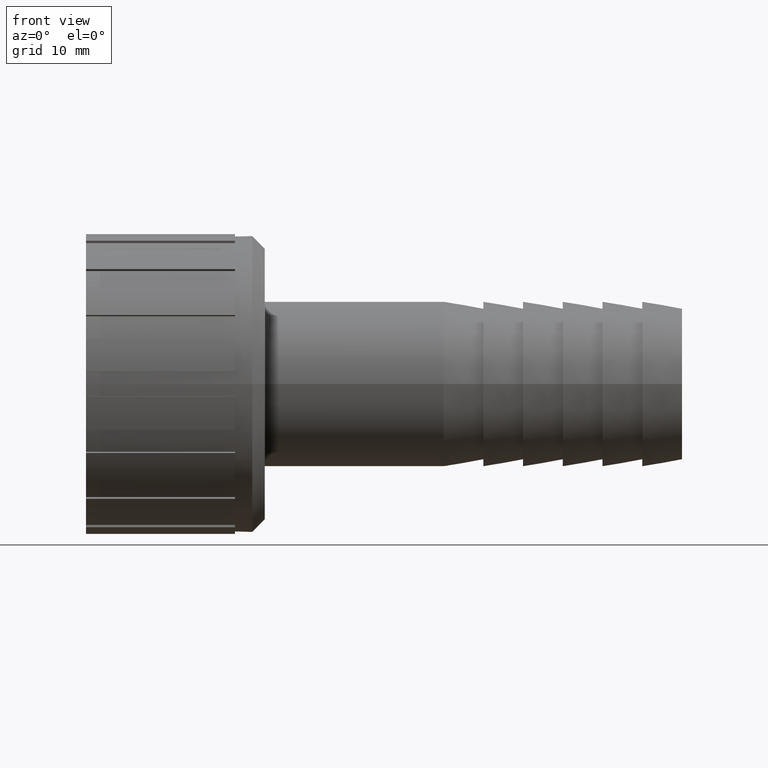
[diagram: clean part render]
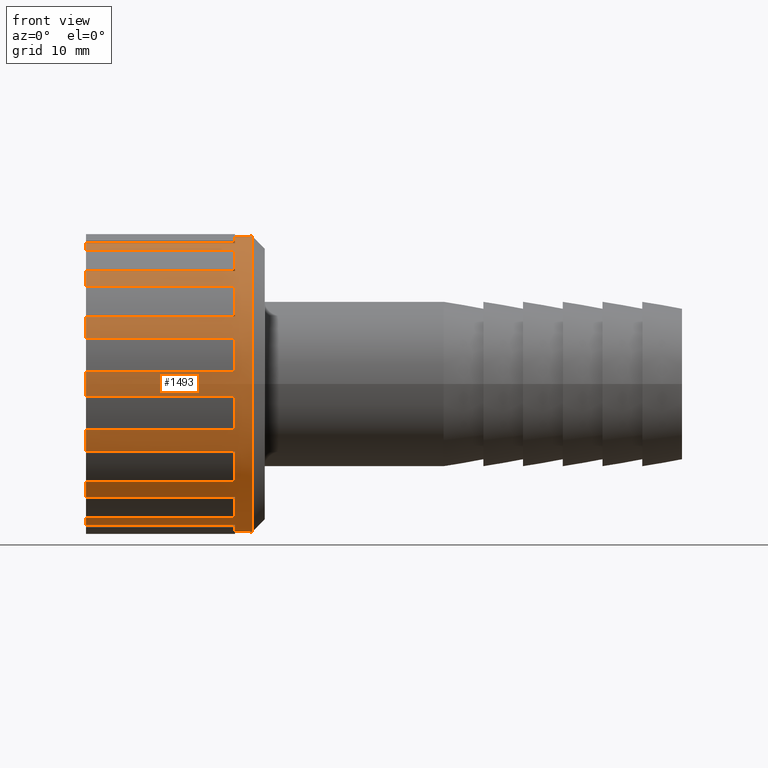
[diagram: same view with one face highlighted and labeled with its STEP entity id]
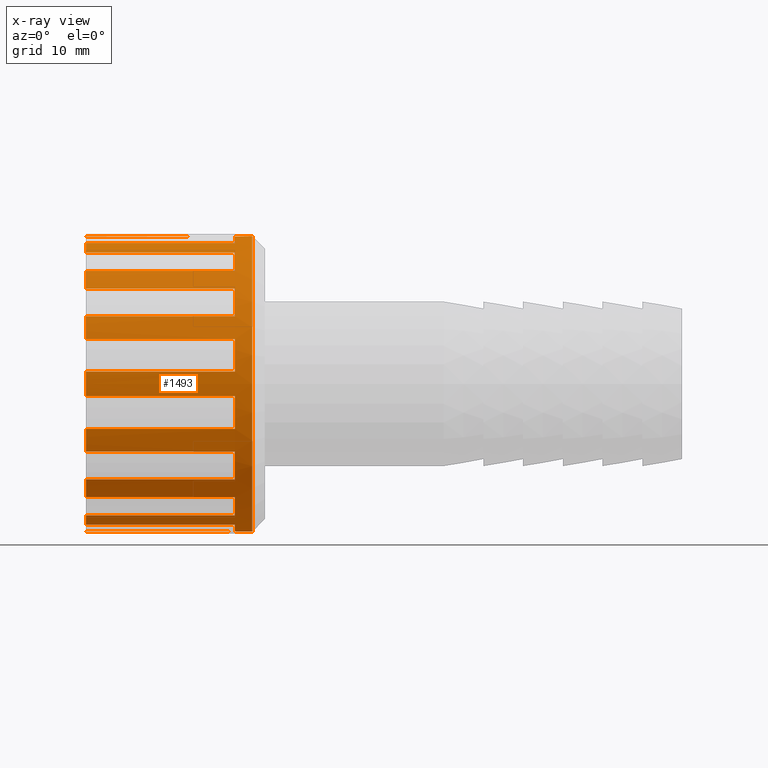
[diagram: x-ray of the same camera — body ghosted, the highlighted face saturated]
A machine part, front view. The second image highlights one B-rep face of the part: STEP entity #1493.
The next image is the same camera in x-ray: the body ghosted, the highlighted face saturated — about 0% of this face is hidden behind the body in this view.
In plain terms, the highlighted cylindrical surface (bore or boss wall) has radius 17.8717 mm, axis along (-1, 0, 0).
Its self-contained STEP definition (entity closure, byte-faithful):
#38=CYLINDRICAL_SURFACE('',#1647,17.87169);
#45=FACE_BOUND('',#300,.T.);
#62=CIRCLE('',#1543,17.87169);
#64=CIRCLE('',#1545,17.87169);
#66=CIRCLE('',#1547,17.87169);
#68=CIRCLE('',#1549,17.87169);
#70=CIRCLE('',#1551,17.87169);
#72=CIRCLE('',#1553,17.87169);
#74=CIRCLE('',#1555,17.87169);
#76=CIRCLE('',#1557,17.87169);
#78=CIRCLE('',#1559,17.87169);
#80=CIRCLE('',#1561,17.87169);
#82=CIRCLE('',#1563,17.87169);
#84=CIRCLE('',#1565,17.87169);
#86=CIRCLE('',#1567,17.87169);
#88=CIRCLE('',#1569,17.87169);
#90=CIRCLE('',#1571,17.87169);
#92=CIRCLE('',#1573,17.87169);
#96=CIRCLE('',#1578,17.87169);
#98=CIRCLE('',#1581,17.87169);
#100=CIRCLE('',#1584,17.87169);
#102=CIRCLE('',#1587,17.87169);
#104=CIRCLE('',#1590,17.87169);
#106=CIRCLE('',#1593,17.87169);
#108=CIRCLE('',#1596,17.87169);
#110=CIRCLE('',#1599,17.87169);
#112=CIRCLE('',#1602,17.87169);
#114=CIRCLE('',#1605,17.87169);
#116=CIRCLE('',#1608,17.87169);
#118=CIRCLE('',#1611,17.87169);
#120=CIRCLE('',#1614,17.87169);
#122=CIRCLE('',#1617,17.87169);
#123=CIRCLE('',#1619,17.87169);
#126=CIRCLE('',#1623,17.87169);
#128=CIRCLE('',#1644,17.87169);
#212=FACE_OUTER_BOUND('',#299,.T.);
#299=EDGE_LOOP('',(#1272,#1273,#1274,#1275,#1276,#1277,#1278,#1279,#1280,
#1281,#1282,#1283,#1284,#1285,#1286,#1287,#1288,#1289,#1290,#1291,#1292,
#1293,#1294,#1295,#1296,#1297,#1298,#1299,#1300,#1301,#1302,#1303,#1304,
#1305,#1306,#1307,#1308,#1309,#1310,#1311,#1312,#1313,#1314,#1315,#1316,
#1317,#1318,#1319,#1320,#1321,#1322,#1323,#1324,#1325,#1326,#1327,#1328,
#1329,#1330,#1331,#1332,#1333,#1334,#1335));
#300=EDGE_LOOP('',(#1336));
#334=LINE('',#2149,#462);
#340=LINE('',#2161,#468);
#342=LINE('',#2167,#470);
#348=LINE('',#2179,#476);
#350=LINE('',#2185,#478);
#356=LINE('',#2197,#484);
#358=LINE('',#2203,#486);
#364=LINE('',#2215,#492);
#366=LINE('',#2221,#494);
#372=LINE('',#2233,#500);
#374=LINE('',#2239,#502);
#380=LINE('',#2251,#508);
#382=LINE('',#2257,#510);
#388=LINE('',#2269,#516);
#390=LINE('',#2275,#518);
#396=LINE('',#2287,#524);
#398=LINE('',#2293,#526);
#404=LINE('',#2305,#532);
#406=LINE('',#2311,#534);
#412=LINE('',#2323,#540);
#414=LINE('',#2329,#542);
#420=LINE('',#2341,#548);
#422=LINE('',#2347,#550);
#428=LINE('',#2359,#556);
#430=LINE('',#2365,#558);
#436=LINE('',#2377,#564);
#438=LINE('',#2383,#566);
#444=LINE('',#2395,#572);
#446=LINE('',#2401,#574);
#452=LINE('',#2413,#580);
#459=LINE('',#2527,#587);
#460=LINE('',#2529,#588);
#462=VECTOR('',#1684,18.);
#468=VECTOR('',#1692,18.);
#470=VECTOR('',#1696,18.);
#476=VECTOR('',#1704,18.);
#478=VECTOR('',#1708,18.);
#484=VECTOR('',#1716,18.);
#486=VECTOR('',#1720,18.);
#492=VECTOR('',#1728,18.);
#494=VECTOR('',#1732,18.);
#500=VECTOR('',#1740,18.);
#502=VECTOR('',#1744,18.);
#508=VECTOR('',#1752,18.);
#510=VECTOR('',#1756,18.);
#516=VECTOR('',#1764,18.);
#518=VECTOR('',#1768,18.);
#524=VECTOR('',#1776,18.);
#526=VECTOR('',#1780,18.);
#532=VECTOR('',#1788,18.);
#534=VECTOR('',#1792,18.);
#540=VECTOR('',#1800,18.);
#542=VECTOR('',#1804,18.);
#548=VECTOR('',#1812,18.);
#550=VECTOR('',#1816,18.);
#556=VECTOR('',#1824,18.);
#558=VECTOR('',#1828,18.);
#564=VECTOR('',#1836,18.);
#566=VECTOR('',#1840,18.);
#572=VECTOR('',#1848,18.);
#574=VECTOR('',#1852,18.);
#580=VECTOR('',#1860,18.);
#587=VECTOR('',#2063,18.);
#588=VECTOR('',#2066,18.);
#589=VERTEX_POINT('',#2145);
#591=VERTEX_POINT('',#2148);
#594=VERTEX_POINT('',#2155);
#596=VERTEX_POINT('',#2159);
#597=VERTEX_POINT('',#2163);
#599=VERTEX_POINT('',#2166);
#602=VERTEX_POINT('',#2173);
#604=VERTEX_POINT('',#2177);
#605=VERTEX_POINT('',#2181);
#607=VERTEX_POINT('',#2184);
#610=VERTEX_POINT('',#2191);
#612=VERTEX_POINT('',#2195);
#613=VERTEX_POINT('',#2199);
#615=VERTEX_POINT('',#2202);
#618=VERTEX_POINT('',#2209);
#620=VERTEX_POINT('',#2213);
#621=VERTEX_POINT('',#2217);
#623=VERTEX_POINT('',#2220);
#626=VERTEX_POINT('',#2227);
#628=VERTEX_POINT('',#2231);
#629=VERTEX_POINT('',#2235);
#631=VERTEX_POINT('',#2238);
#634=VERTEX_POINT('',#2245);
#636=VERTEX_POINT('',#2249);
#637=VERTEX_POINT('',#2253);
#639=VERTEX_POINT('',#2256);
#642=VERTEX_POINT('',#2263);
#644=VERTEX_POINT('',#2267);
#645=VERTEX_POINT('',#2271);
#647=VERTEX_POINT('',#2274);
#650=VERTEX_POINT('',#2281);
#652=VERTEX_POINT('',#2285);
#653=VERTEX_POINT('',#2289);
#655=VERTEX_POINT('',#2292);
#658=VERTEX_POINT('',#2299);
#660=VERTEX_POINT('',#2303);
#661=VERTEX_POINT('',#2307);
#663=VERTEX_POINT('',#2310);
#666=VERTEX_POINT('',#2317);
#668=VERTEX_POINT('',#2321);
#669=VERTEX_POINT('',#2325);
#671=VERTEX_POINT('',#2328);
#674=VERTEX_POINT('',#2335);
#676=VERTEX_POINT('',#2339);
#677=VERTEX_POINT('',#2343);
#679=VERTEX_POINT('',#2346);
#682=VERTEX_POINT('',#2353);
#684=VERTEX_POINT('',#2357);
#685=VERTEX_POINT('',#2361);
#687=VERTEX_POINT('',#2364);
#690=VERTEX_POINT('',#2371);
#692=VERTEX_POINT('',#2375);
#693=VERTEX_POINT('',#2379);
#695=VERTEX_POINT('',#2382);
#698=VERTEX_POINT('',#2389);
#700=VERTEX_POINT('',#2393);
#701=VERTEX_POINT('',#2397);
#703=VERTEX_POINT('',#2400);
#706=VERTEX_POINT('',#2407);
#708=VERTEX_POINT('',#2411);
#710=VERTEX_POINT('',#2418);
#711=VERTEX_POINT('',#2420);
#715=VERTEX_POINT('',#2458);
#716=VERTEX_POINT('',#2501);
#719=VERTEX_POINT('',#2534);
#737=EDGE_CURVE('',#591,#589,#334,.T.);
#743=EDGE_CURVE('',#596,#594,#340,.T.);
#745=EDGE_CURVE('',#599,#597,#342,.T.);
#751=EDGE_CURVE('',#604,#602,#348,.T.);
#753=EDGE_CURVE('',#607,#605,#350,.T.);
#759=EDGE_CURVE('',#612,#610,#356,.T.);
#761=EDGE_CURVE('',#615,#613,#358,.T.);
#767=EDGE_CURVE('',#620,#618,#364,.T.);
#769=EDGE_CURVE('',#623,#621,#366,.T.);
#775=EDGE_CURVE('',#628,#626,#372,.T.);
#777=EDGE_CURVE('',#631,#629,#374,.T.);
#783=EDGE_CURVE('',#636,#634,#380,.T.);
#785=EDGE_CURVE('',#639,#637,#382,.T.);
#791=EDGE_CURVE('',#644,#642,#388,.T.);
#793=EDGE_CURVE('',#647,#645,#390,.T.);
#799=EDGE_CURVE('',#652,#650,#396,.T.);
#801=EDGE_CURVE('',#655,#653,#398,.T.);
#807=EDGE_CURVE('',#660,#658,#404,.T.);
#809=EDGE_CURVE('',#663,#661,#406,.T.);
#815=EDGE_CURVE('',#668,#666,#412,.T.);
#817=EDGE_CURVE('',#671,#669,#414,.T.);
#823=EDGE_CURVE('',#676,#674,#420,.T.);
#825=EDGE_CURVE('',#679,#677,#422,.T.);
#831=EDGE_CURVE('',#684,#682,#428,.T.);
#833=EDGE_CURVE('',#687,#685,#430,.T.);
#839=EDGE_CURVE('',#692,#690,#436,.T.);
#841=EDGE_CURVE('',#695,#693,#438,.T.);
#847=EDGE_CURVE('',#700,#698,#444,.T.);
#849=EDGE_CURVE('',#703,#701,#446,.T.);
#855=EDGE_CURVE('',#708,#706,#452,.T.);
#856=EDGE_CURVE('',#594,#589,#62,.T.);
#859=EDGE_CURVE('',#710,#711,#64,.T.);
#862=EDGE_CURVE('',#706,#701,#66,.T.);
#864=EDGE_CURVE('',#698,#693,#68,.T.);
#866=EDGE_CURVE('',#690,#685,#70,.T.);
#868=EDGE_CURVE('',#682,#677,#72,.T.);
#870=EDGE_CURVE('',#674,#669,#74,.T.);
#872=EDGE_CURVE('',#666,#661,#76,.T.);
#874=EDGE_CURVE('',#658,#653,#78,.T.);
#876=EDGE_CURVE('',#650,#645,#80,.T.);
#878=EDGE_CURVE('',#642,#637,#82,.T.);
#880=EDGE_CURVE('',#634,#629,#84,.T.);
#882=EDGE_CURVE('',#626,#621,#86,.T.);
#884=EDGE_CURVE('',#618,#613,#88,.T.);
#886=EDGE_CURVE('',#610,#605,#90,.T.);
#888=EDGE_CURVE('',#602,#597,#92,.T.);
#893=EDGE_CURVE('',#715,#708,#96,.T.);
#895=EDGE_CURVE('',#703,#700,#98,.T.);
#897=EDGE_CURVE('',#695,#692,#100,.T.);
#899=EDGE_CURVE('',#687,#684,#102,.T.);
#901=EDGE_CURVE('',#679,#676,#104,.T.);
#903=EDGE_CURVE('',#671,#668,#106,.T.);
#905=EDGE_CURVE('',#663,#660,#108,.T.);
#907=EDGE_CURVE('',#655,#652,#110,.T.);
#909=EDGE_CURVE('',#647,#644,#112,.T.);
#911=EDGE_CURVE('',#639,#636,#114,.T.);
#913=EDGE_CURVE('',#631,#628,#116,.T.);
#915=EDGE_CURVE('',#623,#620,#118,.T.);
#917=EDGE_CURVE('',#615,#612,#120,.T.);
#919=EDGE_CURVE('',#607,#604,#122,.T.);
#920=EDGE_CURVE('',#591,#716,#123,.T.);
#924=EDGE_CURVE('',#599,#596,#126,.T.);
#927=EDGE_CURVE('',#715,#711,#459,.T.);
#928=EDGE_CURVE('',#716,#710,#460,.T.);
#930=EDGE_CURVE('',#719,#719,#128,.T.);
#1272=ORIENTED_EDGE('',*,*,#893,.F.);
#1273=ORIENTED_EDGE('',*,*,#927,.T.);
#1274=ORIENTED_EDGE('',*,*,#859,.F.);
#1275=ORIENTED_EDGE('',*,*,#928,.F.);
#1276=ORIENTED_EDGE('',*,*,#920,.F.);
#1277=ORIENTED_EDGE('',*,*,#737,.T.);
#1278=ORIENTED_EDGE('',*,*,#856,.F.);
#1279=ORIENTED_EDGE('',*,*,#743,.F.);
#1280=ORIENTED_EDGE('',*,*,#924,.F.);
#1281=ORIENTED_EDGE('',*,*,#745,.T.);
#1282=ORIENTED_EDGE('',*,*,#888,.F.);
#1283=ORIENTED_EDGE('',*,*,#751,.F.);
#1284=ORIENTED_EDGE('',*,*,#919,.F.);
#1285=ORIENTED_EDGE('',*,*,#753,.T.);
#1286=ORIENTED_EDGE('',*,*,#886,.F.);
#1287=ORIENTED_EDGE('',*,*,#759,.F.);
#1288=ORIENTED_EDGE('',*,*,#917,.F.);
#1289=ORIENTED_EDGE('',*,*,#761,.T.);
#1290=ORIENTED_EDGE('',*,*,#884,.F.);
#1291=ORIENTED_EDGE('',*,*,#767,.F.);
#1292=ORIENTED_EDGE('',*,*,#915,.F.);
#1293=ORIENTED_EDGE('',*,*,#769,.T.);
#1294=ORIENTED_EDGE('',*,*,#882,.F.);
#1295=ORIENTED_EDGE('',*,*,#775,.F.);
#1296=ORIENTED_EDGE('',*,*,#913,.F.);
#1297=ORIENTED_EDGE('',*,*,#777,.T.);
#1298=ORIENTED_EDGE('',*,*,#880,.F.);
#1299=ORIENTED_EDGE('',*,*,#783,.F.);
#1300=ORIENTED_EDGE('',*,*,#911,.F.);
#1301=ORIENTED_EDGE('',*,*,#785,.T.);
#1302=ORIENTED_EDGE('',*,*,#878,.F.);
#1303=ORIENTED_EDGE('',*,*,#791,.F.);
#1304=ORIENTED_EDGE('',*,*,#909,.F.);
#1305=ORIENTED_EDGE('',*,*,#793,.T.);
#1306=ORIENTED_EDGE('',*,*,#876,.F.);
#1307=ORIENTED_EDGE('',*,*,#799,.F.);
#1308=ORIENTED_EDGE('',*,*,#907,.F.);
#1309=ORIENTED_EDGE('',*,*,#801,.T.);
#1310=ORIENTED_EDGE('',*,*,#874,.F.);
#1311=ORIENTED_EDGE('',*,*,#807,.F.);
#1312=ORIENTED_EDGE('',*,*,#905,.F.);
#1313=ORIENTED_EDGE('',*,*,#809,.T.);
#1314=ORIENTED_EDGE('',*,*,#872,.F.);
#1315=ORIENTED_EDGE('',*,*,#815,.F.);
#1316=ORIENTED_EDGE('',*,*,#903,.F.);
#1317=ORIENTED_EDGE('',*,*,#817,.T.);
#1318=ORIENTED_EDGE('',*,*,#870,.F.);
#1319=ORIENTED_EDGE('',*,*,#823,.F.);
#1320=ORIENTED_EDGE('',*,*,#901,.F.);
#1321=ORIENTED_EDGE('',*,*,#825,.T.);
#1322=ORIENTED_EDGE('',*,*,#868,.F.);
#1323=ORIENTED_EDGE('',*,*,#831,.F.);
#1324=ORIENTED_EDGE('',*,*,#899,.F.);
#1325=ORIENTED_EDGE('',*,*,#833,.T.);
#1326=ORIENTED_EDGE('',*,*,#866,.F.);
#1327=ORIENTED_EDGE('',*,*,#839,.F.);
#1328=ORIENTED_EDGE('',*,*,#897,.F.);
#1329=ORIENTED_EDGE('',*,*,#841,.T.);
#1330=ORIENTED_EDGE('',*,*,#864,.F.);
#1331=ORIENTED_EDGE('',*,*,#847,.F.);
#1332=ORIENTED_EDGE('',*,*,#895,.F.);
#1333=ORIENTED_EDGE('',*,*,#849,.T.);
#1334=ORIENTED_EDGE('',*,*,#862,.F.);
#1335=ORIENTED_EDGE('',*,*,#855,.F.);
#1336=ORIENTED_EDGE('',*,*,#930,.F.);
#1493=ADVANCED_FACE('',(#212,#45),#38,.T.);
#1543=AXIS2_PLACEMENT_3D('',#2415,#1863,#1864);
#1545=AXIS2_PLACEMENT_3D('',#2421,#1868,#1869);
#1547=AXIS2_PLACEMENT_3D('',#2425,#1873,#1874);
#1549=AXIS2_PLACEMENT_3D('',#2427,#1877,#1878);
#1551=AXIS2_PLACEMENT_3D('',#2429,#1881,#1882);
#1553=AXIS2_PLACEMENT_3D('',#2431,#1885,#1886);
#1555=AXIS2_PLACEMENT_3D('',#2433,#1889,#1890);
#1557=AXIS2_PLACEMENT_3D('',#2435,#1893,#1894);
#1559=AXIS2_PLACEMENT_3D('',#2437,#1897,#1898);
#1561=AXIS2_PLACEMENT_3D('',#2439,#1901,#1902);
#1563=AXIS2_PLACEMENT_3D('',#2441,#1905,#1906);
#1565=AXIS2_PLACEMENT_3D('',#2443,#1909,#1910);
#1567=AXIS2_PLACEMENT_3D('',#2445,#1913,#1914);
#1569=AXIS2_PLACEMENT_3D('',#2447,#1917,#1918);
#1571=AXIS2_PLACEMENT_3D('',#2449,#1921,#1922);
#1573=AXIS2_PLACEMENT_3D('',#2451,#1925,#1926);
#1578=AXIS2_PLACEMENT_3D('',#2460,#1936,#1937);
#1581=AXIS2_PLACEMENT_3D('',#2463,#1942,#1943);
#1584=AXIS2_PLACEMENT_3D('',#2466,#1948,#1949);
#1587=AXIS2_PLACEMENT_3D('',#2469,#1954,#1955);
#1590=AXIS2_PLACEMENT_3D('',#2472,#1960,#1961);
#1593=AXIS2_PLACEMENT_3D('',#2475,#1966,#1967);
#1596=AXIS2_PLACEMENT_3D('',#2478,#1972,#1973);
#1599=AXIS2_PLACEMENT_3D('',#2481,#1978,#1979);
#1602=AXIS2_PLACEMENT_3D('',#2484,#1984,#1985);
#1605=AXIS2_PLACEMENT_3D('',#2487,#1990,#1991);
#1608=AXIS2_PLACEMENT_3D('',#2490,#1996,#1997);
#1611=AXIS2_PLACEMENT_3D('',#2493,#2002,#2003);
#1614=AXIS2_PLACEMENT_3D('',#2496,#2008,#2009);
#1617=AXIS2_PLACEMENT_3D('',#2499,#2014,#2015);
#1619=AXIS2_PLACEMENT_3D('',#2502,#2018,#2019);
#1623=AXIS2_PLACEMENT_3D('',#2508,#2027,#2028);
#1644=AXIS2_PLACEMENT_3D('',#2535,#2073,#2074);
#1647=AXIS2_PLACEMENT_3D('',#2539,#2079,#2080);
#1684=DIRECTION('',(-1.,0.,0.));
#1692=DIRECTION('',(-1.,0.,0.));
#1696=DIRECTION('',(-1.,0.,0.));
#1704=DIRECTION('',(-1.,0.,0.));
#1708=DIRECTION('',(-1.,0.,0.));
#1716=DIRECTION('',(-1.,0.,0.));
#1720=DIRECTION('',(-1.,0.,0.));
#1728=DIRECTION('',(-1.,0.,0.));
#1732=DIRECTION('',(-1.,0.,0.));
#1740=DIRECTION('',(-1.,0.,0.));
#1744=DIRECTION('',(-1.,0.,0.));
#1752=DIRECTION('',(-1.,0.,0.));
#1756=DIRECTION('',(-1.,0.,0.));
#1764=DIRECTION('',(-1.,0.,0.));
#1768=DIRECTION('',(-1.,0.,0.));
#1776=DIRECTION('',(-1.,0.,0.));
#1780=DIRECTION('',(-1.,0.,0.));
#1788=DIRECTION('',(-1.,0.,0.));
#1792=DIRECTION('',(-1.,0.,0.));
#1800=DIRECTION('',(-1.,0.,0.));
#1804=DIRECTION('',(-1.,0.,0.));
#1812=DIRECTION('',(-1.,0.,0.));
#1816=DIRECTION('',(-1.,0.,0.));
#1824=DIRECTION('',(-1.,0.,0.));
#1828=DIRECTION('',(-1.,0.,0.));
#1836=DIRECTION('',(-1.,0.,0.));
#1840=DIRECTION('',(-1.,0.,0.));
#1848=DIRECTION('',(-1.,0.,0.));
#1852=DIRECTION('',(-1.,0.,0.));
#1860=DIRECTION('',(-1.,0.,0.));
#1863=DIRECTION('center_axis',(-1.,0.,0.));
#1864=DIRECTION('ref_axis',(0.,-0.38268343236509,0.923879532511287));
#1868=DIRECTION('center_axis',(-1.,0.,0.));
#1869=DIRECTION('ref_axis',(0.,0.,1.));
#1873=DIRECTION('center_axis',(-1.,0.,0.));
#1874=DIRECTION('ref_axis',(0.,0.38268343236509,0.923879532511287));
#1877=DIRECTION('center_axis',(-1.,0.,0.));
#1878=DIRECTION('ref_axis',(0.,0.707106781186547,0.707106781186548));
#1881=DIRECTION('center_axis',(-1.,0.,0.));
#1882=DIRECTION('ref_axis',(0.,0.923879532511287,0.38268343236509));
#1885=DIRECTION('center_axis',(-1.,0.,0.));
#1886=DIRECTION('ref_axis',(0.,1.,2.48487529634893E-16));
#1889=DIRECTION('center_axis',(-1.,0.,0.));
#1890=DIRECTION('ref_axis',(0.,0.923879532511287,-0.38268343236509));
#1893=DIRECTION('center_axis',(-1.,0.,0.));
#1894=DIRECTION('ref_axis',(0.,0.707106781186548,-0.707106781186547));
#1897=DIRECTION('center_axis',(-1.,0.,0.));
#1898=DIRECTION('ref_axis',(0.,0.38268343236509,-0.923879532511287));
#1901=DIRECTION('center_axis',(-1.,0.,0.));
#1902=DIRECTION('ref_axis',(0.,5.5909694167851E-16,-1.));
#1905=DIRECTION('center_axis',(-1.,0.,0.));
#1906=DIRECTION('ref_axis',(0.,-0.382683432365089,-0.923879532511287));
#1909=DIRECTION('center_axis',(-1.,0.,0.));
#1910=DIRECTION('ref_axis',(0.,-0.707106781186547,-0.707106781186548));
#1913=DIRECTION('center_axis',(-1.,0.,0.));
#1914=DIRECTION('ref_axis',(0.,-0.923879532511287,-0.38268343236509));
#1917=DIRECTION('center_axis',(-1.,0.,0.));
#1918=DIRECTION('ref_axis',(0.,-1.,-1.0560720009483E-15));
#1921=DIRECTION('center_axis',(-1.,0.,0.));
#1922=DIRECTION('ref_axis',(0.,-0.923879532511287,0.382683432365089));
#1925=DIRECTION('center_axis',(-1.,0.,0.));
#1926=DIRECTION('ref_axis',(0.,-0.707106781186548,0.707106781186547));
#1936=DIRECTION('center_axis',(-1.,0.,0.));
#1937=DIRECTION('ref_axis',(0.,0.,1.));
#1942=DIRECTION('center_axis',(-1.,0.,0.));
#1943=DIRECTION('ref_axis',(0.,0.,1.));
#1948=DIRECTION('center_axis',(-1.,0.,0.));
#1949=DIRECTION('ref_axis',(0.,0.,1.));
#1954=DIRECTION('center_axis',(-1.,0.,0.));
#1955=DIRECTION('ref_axis',(0.,0.,1.));
#1960=DIRECTION('center_axis',(-1.,0.,0.));
#1961=DIRECTION('ref_axis',(0.,0.,1.));
#1966=DIRECTION('center_axis',(-1.,0.,0.));
#1967=DIRECTION('ref_axis',(0.,0.,1.));
#1972=DIRECTION('center_axis',(-1.,0.,0.));
#1973=DIRECTION('ref_axis',(0.,0.,1.));
#1978=DIRECTION('center_axis',(-1.,0.,0.));
#1979=DIRECTION('ref_axis',(0.,0.,1.));
#1984=DIRECTION('center_axis',(-1.,0.,0.));
#1985=DIRECTION('ref_axis',(0.,0.,1.));
#1990=DIRECTION('center_axis',(-1.,0.,0.));
#1991=DIRECTION('ref_axis',(0.,0.,1.));
#1996=DIRECTION('center_axis',(-1.,0.,0.));
#1997=DIRECTION('ref_axis',(0.,0.,1.));
#2002=DIRECTION('center_axis',(-1.,0.,0.));
#2003=DIRECTION('ref_axis',(0.,0.,1.));
#2008=DIRECTION('center_axis',(-1.,0.,0.));
#2009=DIRECTION('ref_axis',(0.,0.,1.));
#2014=DIRECTION('center_axis',(-1.,0.,0.));
#2015=DIRECTION('ref_axis',(0.,0.,1.));
#2018=DIRECTION('center_axis',(-1.,0.,0.));
#2019=DIRECTION('ref_axis',(0.,0.,1.));
#2027=DIRECTION('center_axis',(-1.,0.,0.));
#2028=DIRECTION('ref_axis',(0.,0.,1.));
#2063=DIRECTION('',(-1.,0.,0.));
#2066=DIRECTION('',(-1.,0.,0.));
#2073=DIRECTION('center_axis',(1.,0.,0.));
#2074=DIRECTION('ref_axis',(0.,1.,0.));
#2079=DIRECTION('center_axis',(-1.,0.,0.));
#2080=DIRECTION('ref_axis',(0.,-1.,0.));
#2145=CARTESIAN_POINT('',(0.,-5.43947036182731,17.0237911652752));
#2148=CARTESIAN_POINT('',(18.,-5.43947036182731,17.0237911652752));
#2149=CARTESIAN_POINT('',(18.,-5.43947036182731,17.0237911652752));
#2155=CARTESIAN_POINT('',(0.,-8.19135179555842,15.8839245533811));
#2159=CARTESIAN_POINT('',(18.,-8.19135179555842,15.8839245533811));
#2161=CARTESIAN_POINT('',(18.,-8.19135179555842,15.8839245533811));
#2163=CARTESIAN_POINT('',(0.,-11.540138169988,13.646337035032));
#2166=CARTESIAN_POINT('',(18.,-11.540138169988,13.646337035032));
#2167=CARTESIAN_POINT('',(18.,-11.540138169988,13.646337035032));
#2173=CARTESIAN_POINT('',(0.,-13.646337035032,11.540138169988));
#2177=CARTESIAN_POINT('',(18.,-13.646337035032,11.540138169988));
#2179=CARTESIAN_POINT('',(18.,-13.646337035032,11.540138169988));
#2181=CARTESIAN_POINT('',(0.,-15.8839245533811,8.1913517955584));
#2184=CARTESIAN_POINT('',(18.,-15.8839245533811,8.1913517955584));
#2185=CARTESIAN_POINT('',(18.,-15.8839245533811,8.1913517955584));
#2191=CARTESIAN_POINT('',(0.,-17.0237911652752,5.43947036182729));
#2195=CARTESIAN_POINT('',(18.,-17.0237911652752,5.43947036182729));
#2197=CARTESIAN_POINT('',(18.,-17.0237911652752,5.43947036182729));
#2199=CARTESIAN_POINT('',(0.,-17.8095274116565,1.48930749999998));
#2202=CARTESIAN_POINT('',(18.,-17.8095274116565,1.48930749999998));
#2203=CARTESIAN_POINT('',(18.,-17.8095274116565,1.48930749999998));
#2209=CARTESIAN_POINT('',(0.,-17.8095274116565,-1.48930750000002));
#2213=CARTESIAN_POINT('',(18.,-17.8095274116565,-1.48930750000002));
#2215=CARTESIAN_POINT('',(18.,-17.8095274116565,-1.48930750000002));
#2217=CARTESIAN_POINT('',(0.,-17.0237911652752,-5.43947036182731));
#2220=CARTESIAN_POINT('',(18.,-17.0237911652752,-5.43947036182731));
#2221=CARTESIAN_POINT('',(18.,-17.0237911652752,-5.43947036182731));
#2227=CARTESIAN_POINT('',(0.,-15.8839245533811,-8.19135179555842));
#2231=CARTESIAN_POINT('',(18.,-15.8839245533811,-8.19135179555842));
#2233=CARTESIAN_POINT('',(18.,-15.8839245533811,-8.19135179555842));
#2235=CARTESIAN_POINT('',(0.,-13.646337035032,-11.540138169988));
#2238=CARTESIAN_POINT('',(18.,-13.646337035032,-11.540138169988));
#2239=CARTESIAN_POINT('',(18.,-13.646337035032,-11.540138169988));
#2245=CARTESIAN_POINT('',(0.,-11.540138169988,-13.646337035032));
#2249=CARTESIAN_POINT('',(18.,-11.540138169988,-13.646337035032));
#2251=CARTESIAN_POINT('',(18.,-11.540138169988,-13.646337035032));
#2253=CARTESIAN_POINT('',(0.,-8.1913517955584,-15.8839245533811));
#2256=CARTESIAN_POINT('',(18.,-8.1913517955584,-15.8839245533811));
#2257=CARTESIAN_POINT('',(18.,-8.1913517955584,-15.8839245533811));
#2263=CARTESIAN_POINT('',(0.,-5.43947036182729,-17.0237911652752));
#2267=CARTESIAN_POINT('',(18.,-5.43947036182729,-17.0237911652752));
#2269=CARTESIAN_POINT('',(18.,-5.43947036182729,-17.0237911652752));
#2271=CARTESIAN_POINT('',(0.,-1.48930749999999,-17.8095274116565));
#2274=CARTESIAN_POINT('',(18.,-1.48930749999999,-17.8095274116565));
#2275=CARTESIAN_POINT('',(18.,-1.48930749999999,-17.8095274116565));
#2281=CARTESIAN_POINT('',(0.,1.48930750000001,-17.8095274116565));
#2285=CARTESIAN_POINT('',(18.,1.48930750000001,-17.8095274116565));
#2287=CARTESIAN_POINT('',(18.,1.48930750000001,-17.8095274116565));
#2289=CARTESIAN_POINT('',(0.,5.43947036182731,-17.0237911652752));
#2292=CARTESIAN_POINT('',(18.,5.43947036182731,-17.0237911652752));
#2293=CARTESIAN_POINT('',(18.,5.43947036182731,-17.0237911652752));
#2299=CARTESIAN_POINT('',(0.,8.19135179555842,-15.8839245533811));
#2303=CARTESIAN_POINT('',(18.,8.19135179555842,-15.8839245533811));
#2305=CARTESIAN_POINT('',(18.,8.19135179555842,-15.8839245533811));
#2307=CARTESIAN_POINT('',(0.,11.540138169988,-13.646337035032));
#2310=CARTESIAN_POINT('',(18.,11.540138169988,-13.646337035032));
#2311=CARTESIAN_POINT('',(18.,11.540138169988,-13.646337035032));
#2317=CARTESIAN_POINT('',(0.,13.646337035032,-11.540138169988));
#2321=CARTESIAN_POINT('',(18.,13.646337035032,-11.540138169988));
#2323=CARTESIAN_POINT('',(18.,13.646337035032,-11.540138169988));
#2325=CARTESIAN_POINT('',(0.,15.8839245533811,-8.1913517955584));
#2328=CARTESIAN_POINT('',(18.,15.8839245533811,-8.1913517955584));
#2329=CARTESIAN_POINT('',(18.,15.8839245533811,-8.1913517955584));
#2335=CARTESIAN_POINT('',(0.,17.0237911652752,-5.4394703618273));
#2339=CARTESIAN_POINT('',(18.,17.0237911652752,-5.4394703618273));
#2341=CARTESIAN_POINT('',(18.,17.0237911652752,-5.4394703618273));
#2343=CARTESIAN_POINT('',(0.,17.8095274116565,-1.48930749999999));
#2346=CARTESIAN_POINT('',(18.,17.8095274116565,-1.48930749999999));
#2347=CARTESIAN_POINT('',(18.,17.8095274116565,-1.48930749999999));
#2353=CARTESIAN_POINT('',(0.,17.8095274116565,1.48930750000001));
#2357=CARTESIAN_POINT('',(18.,17.8095274116565,1.48930750000001));
#2359=CARTESIAN_POINT('',(18.,17.8095274116565,1.48930750000001));
#2361=CARTESIAN_POINT('',(0.,17.0237911652752,5.43947036182731));
#2364=CARTESIAN_POINT('',(18.,17.0237911652752,5.43947036182731));
#2365=CARTESIAN_POINT('',(18.,17.0237911652752,5.43947036182731));
#2371=CARTESIAN_POINT('',(0.,15.8839245533811,8.19135179555841));
#2375=CARTESIAN_POINT('',(18.,15.8839245533811,8.19135179555841));
#2377=CARTESIAN_POINT('',(18.,15.8839245533811,8.19135179555841));
#2379=CARTESIAN_POINT('',(0.,13.646337035032,11.540138169988));
#2382=CARTESIAN_POINT('',(18.,13.646337035032,11.540138169988));
#2383=CARTESIAN_POINT('',(18.,13.646337035032,11.540138169988));
#2389=CARTESIAN_POINT('',(0.,11.540138169988,13.646337035032));
#2393=CARTESIAN_POINT('',(18.,11.540138169988,13.646337035032));
#2395=CARTESIAN_POINT('',(18.,11.540138169988,13.646337035032));
#2397=CARTESIAN_POINT('',(0.,8.19135179555841,15.8839245533811));
#2400=CARTESIAN_POINT('',(18.,8.19135179555841,15.8839245533811));
#2401=CARTESIAN_POINT('',(18.,8.19135179555841,15.8839245533811));
#2407=CARTESIAN_POINT('',(0.,5.4394703618273,17.0237911652752));
#2411=CARTESIAN_POINT('',(18.,5.4394703618273,17.0237911652752));
#2413=CARTESIAN_POINT('',(18.,5.4394703618273,17.0237911652752));
#2415=CARTESIAN_POINT('Origin',(0.,0.,0.));
#2418=CARTESIAN_POINT('',(0.,-1.4893075,17.8095274116565));
#2420=CARTESIAN_POINT('',(0.,1.4893075,17.8095274116565));
#2421=CARTESIAN_POINT('Origin',(0.,0.,0.));
#2425=CARTESIAN_POINT('Origin',(0.,0.,0.));
#2427=CARTESIAN_POINT('Origin',(0.,0.,0.));
#2429=CARTESIAN_POINT('Origin',(0.,0.,0.));
#2431=CARTESIAN_POINT('Origin',(0.,0.,0.));
#2433=CARTESIAN_POINT('Origin',(0.,0.,0.));
#2435=CARTESIAN_POINT('Origin',(0.,0.,0.));
#2437=CARTESIAN_POINT('Origin',(0.,0.,0.));
#2439=CARTESIAN_POINT('Origin',(0.,0.,0.));
#2441=CARTESIAN_POINT('Origin',(0.,0.,0.));
#2443=CARTESIAN_POINT('Origin',(0.,0.,0.));
#2445=CARTESIAN_POINT('Origin',(0.,0.,0.));
#2447=CARTESIAN_POINT('Origin',(0.,0.,0.));
#2449=CARTESIAN_POINT('Origin',(0.,0.,0.));
#2451=CARTESIAN_POINT('Origin',(0.,0.,0.));
#2458=CARTESIAN_POINT('',(18.,1.4893075,17.8095274116565));
#2460=CARTESIAN_POINT('Origin',(18.,0.,0.));
#2463=CARTESIAN_POINT('Origin',(18.,0.,0.));
#2466=CARTESIAN_POINT('Origin',(18.,0.,0.));
#2469=CARTESIAN_POINT('Origin',(18.,0.,0.));
#2472=CARTESIAN_POINT('Origin',(18.,0.,0.));
#2475=CARTESIAN_POINT('Origin',(18.,0.,0.));
#2478=CARTESIAN_POINT('Origin',(18.,0.,0.));
#2481=CARTESIAN_POINT('Origin',(18.,0.,0.));
#2484=CARTESIAN_POINT('Origin',(18.,0.,0.));
#2487=CARTESIAN_POINT('Origin',(18.,0.,0.));
#2490=CARTESIAN_POINT('Origin',(18.,0.,0.));
#2493=CARTESIAN_POINT('Origin',(18.,0.,0.));
#2496=CARTESIAN_POINT('Origin',(18.,0.,0.));
#2499=CARTESIAN_POINT('Origin',(18.,0.,0.));
#2501=CARTESIAN_POINT('',(18.,-1.4893075,17.8095274116565));
#2502=CARTESIAN_POINT('Origin',(18.,0.,0.));
#2508=CARTESIAN_POINT('Origin',(18.,0.,0.));
#2527=CARTESIAN_POINT('',(18.,1.4893075,17.8095274116565));
#2529=CARTESIAN_POINT('',(18.,-1.4893075,17.8095274116565));
#2534=CARTESIAN_POINT('',(20.08545,-17.87169,-2.18865079538538E-15));
#2535=CARTESIAN_POINT('Origin',(20.08545,0.,0.));
#2539=CARTESIAN_POINT('Origin',(19.8,0.,0.));